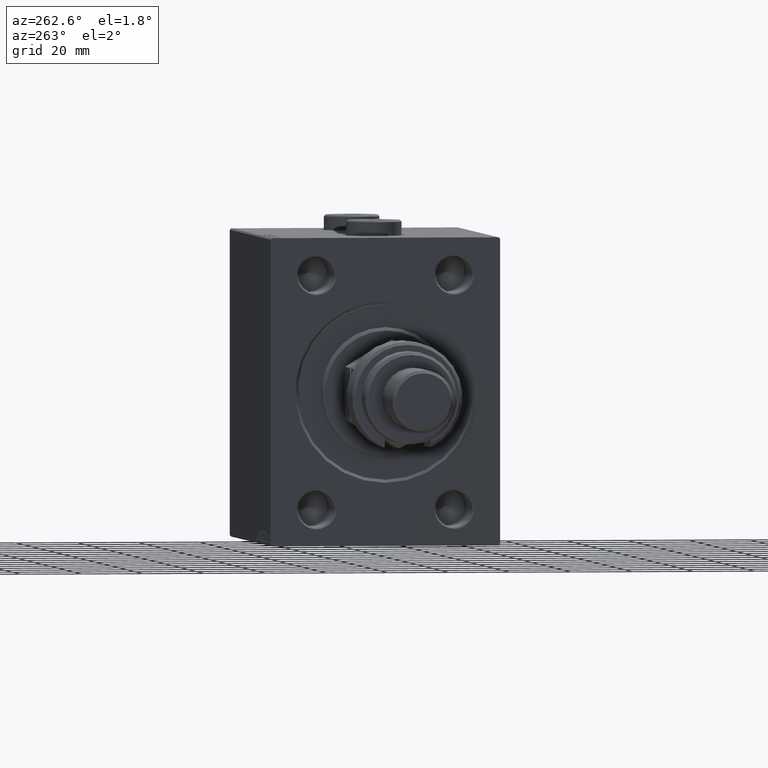
[diagram: clean part render]
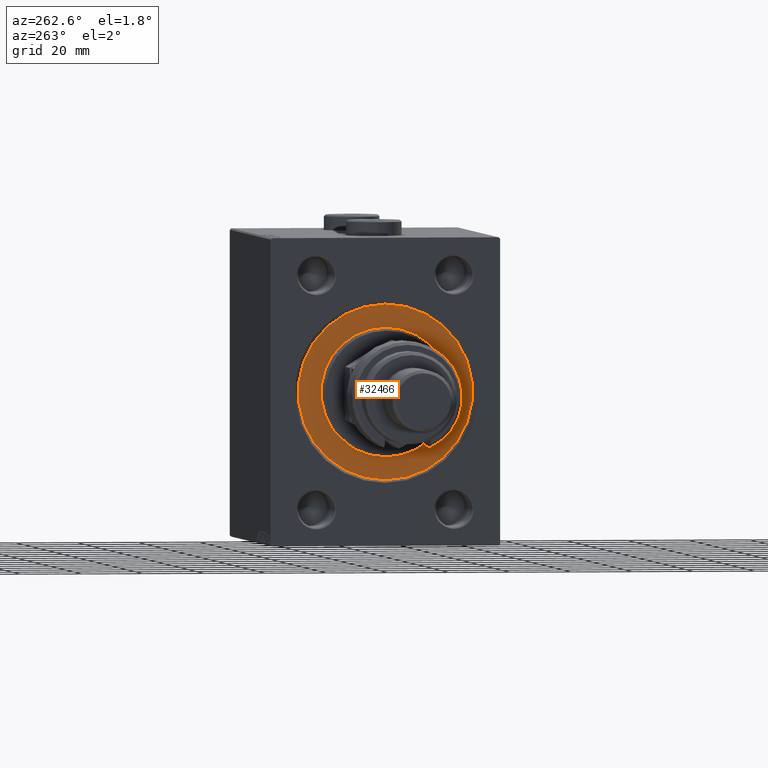
[diagram: same view with one face highlighted and labeled with its STEP entity id]
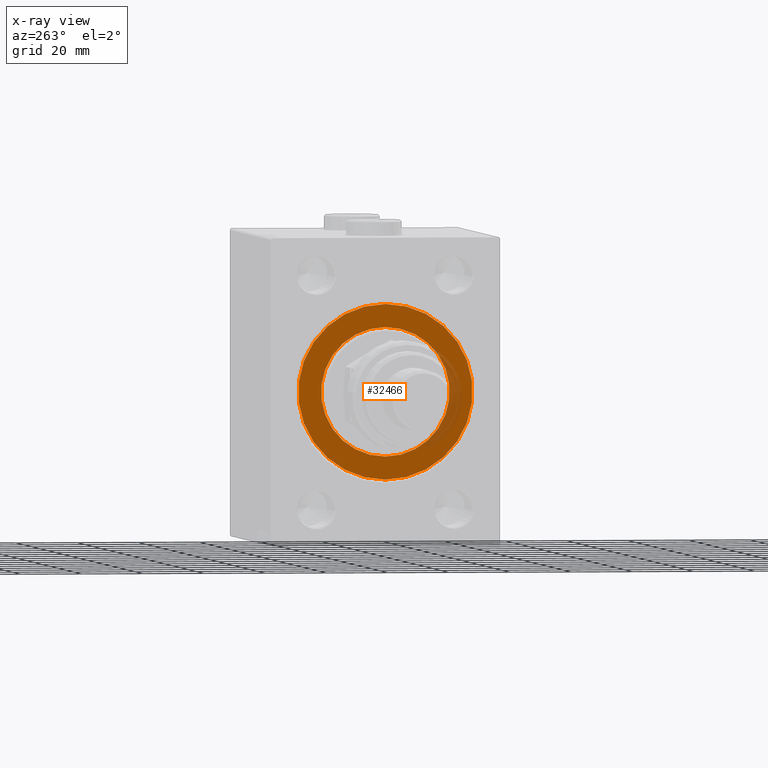
[diagram: x-ray of the same camera — body ghosted, the highlighted face saturated]
A machine part, auxiliary view. The second image highlights one B-rep face of the part: STEP entity #32466.
The next image is the same camera in x-ray: the body ghosted, the highlighted face saturated — about 10% of this face is hidden behind the body in this view.
In plain terms, the highlighted planar face has unit normal (1, -0, -0).
Its self-contained STEP definition (entity closure, byte-faithful):
#544 = CARTESIAN_POINT ( 'NONE',  ( 0.000000000000000000, 0.000000000000000000, 0.000000000000000000 ) ) ;
#630 = EDGE_CURVE ( 'NONE', #30537, #12650, #41271, .T. ) ;
#750 = VERTEX_POINT ( 'NONE', #33535 ) ;
#1710 = DIRECTION ( 'NONE',  ( 1.000000000000000000, -0.000000000000000000, 0.000000000000000000 ) ) ;
#4462 = CIRCLE ( 'NONE', #7702, 28.50000000000000000 ) ;
#5210 = EDGE_CURVE ( 'NONE', #12650, #30537, #4462, .T. ) ;
#5851 = DIRECTION ( 'NONE',  ( -1.000000000000000000, 0.000000000000000000, 0.000000000000000000 ) ) ;
#6574 = VERTEX_POINT ( 'NONE', #32564 ) ;
#7702 = AXIS2_PLACEMENT_3D ( 'NONE', #30903, #8838, #8589 ) ;
#8589 = DIRECTION ( 'NONE',  ( 0.000000000000000000, 0.000000000000000000, 1.000000000000000000 ) ) ;
#8838 = DIRECTION ( 'NONE',  ( -1.000000000000000000, 0.000000000000000000, 0.000000000000000000 ) ) ;
#9327 = DIRECTION ( 'NONE',  ( 0.000000000000000000, 0.000000000000000000, -1.000000000000000000 ) ) ;
#11368 = DIRECTION ( 'NONE',  ( 1.000000000000000000, -0.000000000000000000, 0.000000000000000000 ) ) ;
#12562 = DIRECTION ( 'NONE',  ( 0.000000000000000000, 0.000000000000000000, 1.000000000000000000 ) ) ;
#12650 = VERTEX_POINT ( 'NONE', #33115 ) ;
#15287 = CARTESIAN_POINT ( 'NONE',  ( 0.000000000000000000, 0.000000000000000000, 0.000000000000000000 ) ) ;
#17604 = DIRECTION ( 'NONE',  ( 0.000000000000000000, 0.000000000000000000, 1.000000000000000000 ) ) ;
#18326 = EDGE_CURVE ( 'NONE', #6574, #750, #34667, .T. ) ;
#19290 = AXIS2_PLACEMENT_3D ( 'NONE', #35338, #1710, #9327 ) ;
#19765 = AXIS2_PLACEMENT_3D ( 'NONE', #15287, #11368, #27067 ) ;
#22913 = ORIENTED_EDGE ( 'NONE', *, *, #5210, .F. ) ;
#23113 = ORIENTED_EDGE ( 'NONE', *, *, #18326, .F. ) ;
#27067 = DIRECTION ( 'NONE',  ( 0.000000000000000000, 0.000000000000000000, -1.000000000000000000 ) ) ;
#27151 = AXIS2_PLACEMENT_3D ( 'NONE', #43646, #5851, #17604 ) ;
#27537 = DIRECTION ( 'NONE',  ( -1.000000000000000000, 0.000000000000000000, 0.000000000000000000 ) ) ;
#28168 = ORIENTED_EDGE ( 'NONE', *, *, #630, .F. ) ;
#28640 = EDGE_LOOP ( 'NONE', ( #22913, #28168 ) ) ;
#29120 = EDGE_CURVE ( 'NONE', #750, #6574, #36554, .T. ) ;
#29311 = EDGE_LOOP ( 'NONE', ( #23113, #46283 ) ) ;
#30537 = VERTEX_POINT ( 'NONE', #31372 ) ;
#30903 = CARTESIAN_POINT ( 'NONE',  ( 0.000000000000000000, 0.000000000000000000, 0.000000000000000000 ) ) ;
#31372 = CARTESIAN_POINT ( 'NONE',  ( 0.000000000000000000, 3.490243377569956456E-15, 28.50000000000000000 ) ) ;
#31478 = PLANE ( 'NONE',  #39010 ) ;
#32466 = ADVANCED_FACE ( 'NONE', ( #38350, #42538 ), #31478, .F. ) ;
#32564 = CARTESIAN_POINT ( 'NONE',  ( 0.000000000000000000, 0.000000000000000000, 21.00000000000000000 ) ) ;
#33115 = CARTESIAN_POINT ( 'NONE',  ( 0.000000000000000000, 0.000000000000000000, -28.50000000000000000 ) ) ;
#33535 = CARTESIAN_POINT ( 'NONE',  ( 0.000000000000000000, 2.571758278209441661E-15, -21.00000000000000000 ) ) ;
#34667 = CIRCLE ( 'NONE', #19765, 21.00000000000000000 ) ;
#35338 = CARTESIAN_POINT ( 'NONE',  ( 0.000000000000000000, 0.000000000000000000, 0.000000000000000000 ) ) ;
#36554 = CIRCLE ( 'NONE', #19290, 21.00000000000000000 ) ;
#38350 = FACE_BOUND ( 'NONE', #29311, .T. ) ;
#39010 = AXIS2_PLACEMENT_3D ( 'NONE', #544, #27537, #12562 ) ;
#41271 = CIRCLE ( 'NONE', #27151, 28.50000000000000000 ) ;
#42538 = FACE_OUTER_BOUND ( 'NONE', #28640, .T. ) ;
#43646 = CARTESIAN_POINT ( 'NONE',  ( 0.000000000000000000, 0.000000000000000000, 0.000000000000000000 ) ) ;
#46283 = ORIENTED_EDGE ( 'NONE', *, *, #29120, .F. ) ;